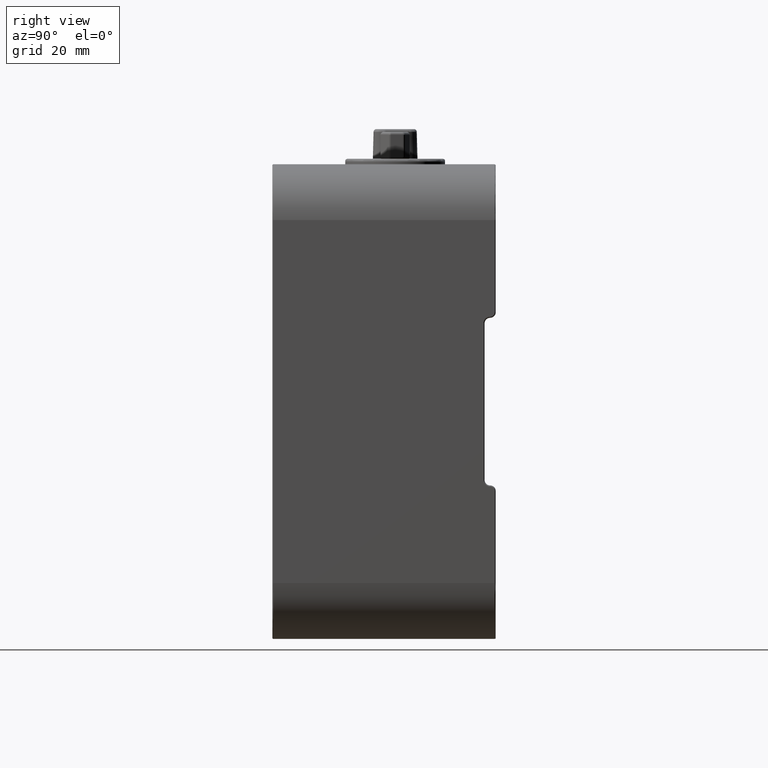
[diagram: clean part render]
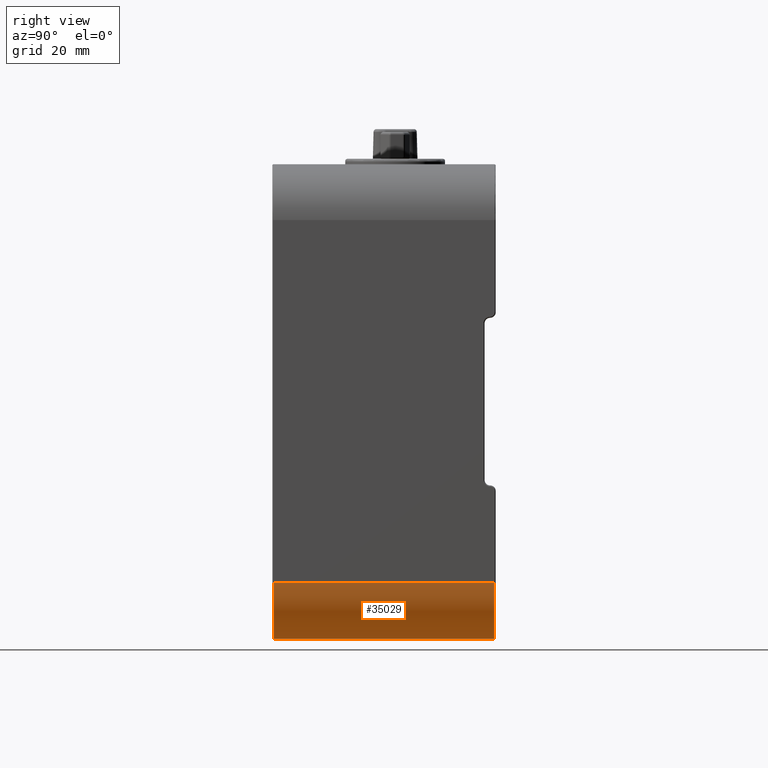
[diagram: same view with one face highlighted and labeled with its STEP entity id]
A machine part, right view. The second image highlights one B-rep face of the part: STEP entity #35029.
In plain terms, the highlighted cylindrical surface (partial cylindrical patch) has radius 10 mm, axis along (0, -1, -0).
Its self-contained STEP definition (entity closure, byte-faithful):
#964 = LINE ( 'NONE', #24980, #41260 ) ;
#1135 = CIRCLE ( 'NONE', #19079, 10.00000000000000888 ) ;
#3463 = DIRECTION ( 'NONE',  ( -1.224646799147356905E-16, 1.000000000000000000, 1.224646799147353207E-16 ) ) ;
#3629 = VECTOR ( 'NONE', #13929, 1000.000000000000000 ) ;
#3640 = EDGE_LOOP ( 'NONE', ( #6838, #29837, #37740, #40541 ) ) ;
#5338 = AXIS2_PLACEMENT_3D ( 'NONE', #25573, #29600, #18831 ) ;
#6838 = ORIENTED_EDGE ( 'NONE', *, *, #15627, .T. ) ;
#7184 = LINE ( 'NONE', #34794, #3629 ) ;
#8577 = EDGE_CURVE ( 'NONE', #35347, #26693, #1135, .T. ) ;
#10548 = DIRECTION ( 'NONE',  ( 1.387778780781445676E-15, 1.219727444046192488E-16, -1.000000000000000000 ) ) ;
#11201 = CARTESIAN_POINT ( 'NONE',  ( 75.00000000000000000, 0.1999999999999928779, 9.999999999999987566 ) ) ;
#11646 = DIRECTION ( 'NONE',  ( 1.000000000000000000, 0.000000000000000000, 0.000000000000000000 ) ) ;
#13929 = DIRECTION ( 'NONE',  ( 1.224646799147356905E-16, -1.000000000000000000, -1.224646799147353207E-16 ) ) ;
#15627 = EDGE_CURVE ( 'NONE', #26693, #41082, #7184, .T. ) ;
#17305 = AXIS2_PLACEMENT_3D ( 'NONE', #11201, #27372, #10548 ) ;
#18831 = DIRECTION ( 'NONE',  ( 1.000000000000000000, 0.000000000000000000, 0.000000000000000000 ) ) ;
#19079 = AXIS2_PLACEMENT_3D ( 'NONE', #28698, #21747, #11646 ) ;
#21747 = DIRECTION ( 'NONE',  ( 1.224646799147356905E-16, -1.000000000000000000, -1.224646799147353207E-16 ) ) ;
#23711 = VERTEX_POINT ( 'NONE', #35175 ) ;
#24980 = CARTESIAN_POINT ( 'NONE',  ( 75.00000000000000000, 39.99999999999999289, 6.938893903907228378E-15 ) ) ;
#25573 = CARTESIAN_POINT ( 'NONE',  ( 74.99999999999998579, 39.99999999999999289, 10.00000000000000888 ) ) ;
#26693 = VERTEX_POINT ( 'NONE', #31219 ) ;
#27372 = DIRECTION ( 'NONE',  ( 1.224646799147356905E-16, -1.000000000000000000, -1.224646799147353207E-16 ) ) ;
#28698 = CARTESIAN_POINT ( 'NONE',  ( 74.99999999999998579, 39.79999999999999716, 10.00000000000000888 ) ) ;
#28937 = CYLINDRICAL_SURFACE ( 'NONE', #5338, 10.00000000000000888 ) ;
#29322 = CARTESIAN_POINT ( 'NONE',  ( 74.99999999999998579, 39.80000000000000426, 6.614286281743875166E-15 ) ) ;
#29378 = FACE_OUTER_BOUND ( 'NONE', #3640, .T. ) ;
#29600 = DIRECTION ( 'NONE',  ( 1.224646799147356905E-16, -1.000000000000000000, -1.224646799147353207E-16 ) ) ;
#29837 = ORIENTED_EDGE ( 'NONE', *, *, #39942, .F. ) ;
#31219 = CARTESIAN_POINT ( 'NONE',  ( 84.99999999999998579, 39.79999999999999005, 10.00000000000000178 ) ) ;
#33930 = EDGE_CURVE ( 'NONE', #23711, #35347, #964, .T. ) ;
#34794 = CARTESIAN_POINT ( 'NONE',  ( 84.99999999999998579, 39.99999999999999289, 10.00000000000000888 ) ) ;
#35029 = ADVANCED_FACE ( 'NONE', ( #29378 ), #28937, .T. ) ;
#35175 = CARTESIAN_POINT ( 'NONE',  ( 75.00000000000001421, 0.1999999999999940992, -6.776263578034402713E-15 ) ) ;
#35347 = VERTEX_POINT ( 'NONE', #29322 ) ;
#37391 = CIRCLE ( 'NONE', #17305, 10.00000000000000000 ) ;
#37502 = CARTESIAN_POINT ( 'NONE',  ( 84.99999999999998579, 0.1999999999999935441, 9.999999999999996447 ) ) ;
#37740 = ORIENTED_EDGE ( 'NONE', *, *, #33930, .T. ) ;
#39942 = EDGE_CURVE ( 'NONE', #23711, #41082, #37391, .T. ) ;
#40541 = ORIENTED_EDGE ( 'NONE', *, *, #8577, .T. ) ;
#41082 = VERTEX_POINT ( 'NONE', #37502 ) ;
#41260 = VECTOR ( 'NONE', #3463, 1000.000000000000000 ) ;